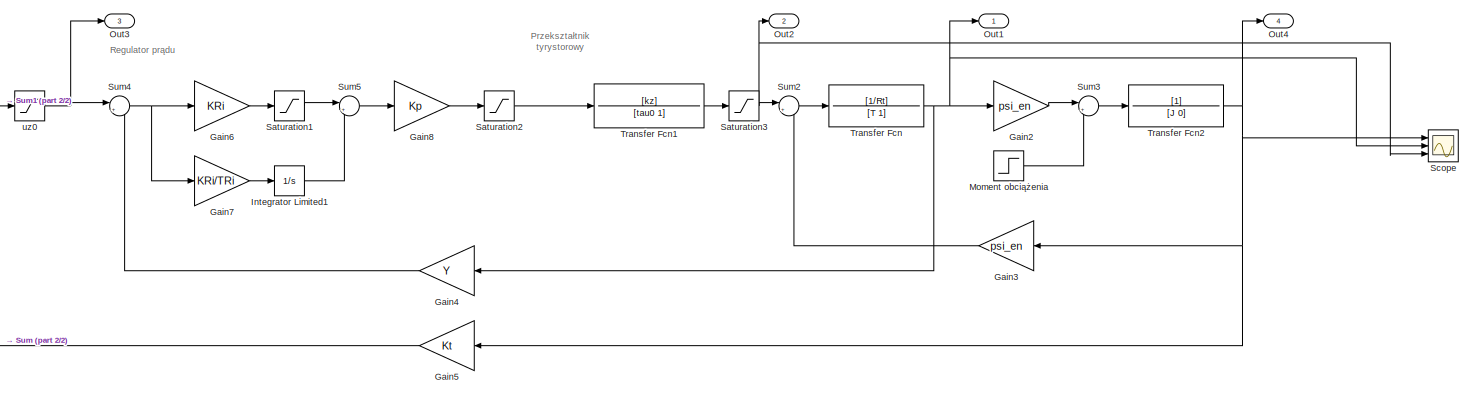
[diagram: root canvas - part 1/2, most of the canvas]
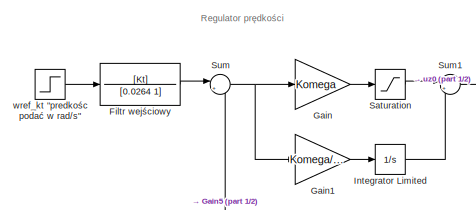
[diagram: root canvas - part 2/2, middle left region]
MODEL slx_f208530b48c3
KIND model
CONFIG AbsTol = auto
CONFIG EnableMultiTasking = off
CONFIG FixedStep = 0.001
CONFIG MaxStep = auto
CONFIG MinStep = auto
CONFIG RelTol = 1e-3
CONFIG SampleTimeConstraint = Unconstrained
CONFIG Solver = FixedStepAuto
CONFIG SolverName = FixedStepAuto
CONFIG StartTime = 0
CONFIG StopTime = 4
BLOCK [TransferFcn] Filtr wejściowy 
  Denominator = [0.0264 1]
  Numerator = [Kt]
BLOCK [Gain] Gain
  Gain = Komega
  OutDataTypeStr = Inherit: Inherit via internal rule
  ParamDataTypeStr = Inherit: Inherit via internal rule
  SaturateOnIntegerOverflow = off
BLOCK [Gain] Gain1
  Gain = Komega/Tr_pred
  OutDataTypeStr = Inherit: Inherit via internal rule
  ParamDataTypeStr = Inherit: Inherit via internal rule
  SaturateOnIntegerOverflow = off
BLOCK [Gain] Gain2
  Gain = psi_en
  OutDataTypeStr = Inherit: Inherit via internal rule
  ParamDataTypeStr = Inherit: Inherit via internal rule
  SaturateOnIntegerOverflow = off
BLOCK [Gain] Gain3
  Gain = psi_en
  OutDataTypeStr = Inherit: Inherit via internal rule
  ParamDataTypeStr = Inherit: Inherit via internal rule
  SaturateOnIntegerOverflow = off
BLOCK [Gain] Gain4
  Gain = Y
  OutDataTypeStr = Inherit: Inherit via internal rule
  ParamDataTypeStr = Inherit: Inherit via internal rule
  SaturateOnIntegerOverflow = off
BLOCK [Gain] Gain5
  Gain = Kt
  OutDataTypeStr = Inherit: Inherit via internal rule
  ParamDataTypeStr = Inherit: Inherit via internal rule
  SaturateOnIntegerOverflow = off
BLOCK [Gain] Gain6
  Gain = KRi
  OutDataTypeStr = Inherit: Inherit via internal rule
  ParamDataTypeStr = Inherit: Inherit via internal rule
  SaturateOnIntegerOverflow = off
BLOCK [Gain] Gain7
  Gain = KRi/TRi
  OutDataTypeStr = Inherit: Inherit via internal rule
  ParamDataTypeStr = Inherit: Inherit via internal rule
  SaturateOnIntegerOverflow = off
BLOCK [Gain] Gain8
  Gain = Kp
  OutDataTypeStr = Inherit: Inherit via internal rule
  ParamDataTypeStr = Inherit: Inherit via internal rule
  SaturateOnIntegerOverflow = off
BLOCK [Integrator] Integrator Limited
  LimitOutput = on
  LowerSaturationLimit = -10
  Ports = [1, 1]
  UpperSaturationLimit = 10
BLOCK [Integrator] Integrator Limited1
  LimitOutput = on
  LowerSaturationLimit = -10
  Ports = [1, 1]
  UpperSaturationLimit = 10
BLOCK [Step] Moment obciążenia
  After = 0
  SampleTime = 0
BLOCK [Outport] Out1
  IconDisplay = Port number
  SignalName = Prad_twornika
BLOCK [Outport] Out2
  IconDisplay = Port number
  Port = 2
  SignalName = Napiecie twornika
BLOCK [Outport] Out3
  IconDisplay = Port number
  Port = 3
  SignalName = Prad zadany
BLOCK [Outport] Out4
  IconDisplay = Port number
  Port = 4
  SignalName = Predkość
BLOCK [Saturate] Saturation
  InputPortMap = u0
  LowerLimit = -10
  Ports = [1, 1]
  UpperLimit = 10
BLOCK [Saturate] Saturation1
  InputPortMap = u0
  LowerLimit = -10
  Ports = [1, 1]
  UpperLimit = 10
BLOCK [Saturate] Saturation2
  InputPortMap = u0
  LowerLimit = -700
  Ports = [1, 1]
  UpperLimit = 700
BLOCK [Saturate] Saturation3
  InputPortMap = u0
  LowerLimit = -700
  Ports = [1, 1]
  UpperLimit = 700
BLOCK [Scope] Scope
  Floating = off
  NumInputPorts = 3
  Ports = [3]
  ScopeSpecificationString = Simulink.scopes.TimeScopeBlockCfg('CurrentConfiguration', extmgr.ConfigurationSet(extmgr.Configuration('Core','General UI',true),extmgr.Configuration('Core','Source UI',true),extmgr.Configuration('Sources','WiredSimulink',true),extmgr.Configuration('Visuals','Time Domain',true,'SerializedDisplays',{struct('MinYLimReal','-200','MaxYLimReal','300','YLabelReal','','MinYLimMag',' 0.00000','MaxYLimMag'...<+1605ch>
BLOCK [Sum] Sum
  IconShape = round
  InputSameDT = off
  Inputs = |+-
  OutDataTypeStr = Inherit: Inherit via internal rule
  Ports = [2, 1]
  SaturateOnIntegerOverflow = off
BLOCK [Sum] Sum1
  IconShape = round
  InputSameDT = off
  Inputs = |++
  OutDataTypeStr = Inherit: Inherit via internal rule
  Ports = [2, 1]
  SaturateOnIntegerOverflow = off
BLOCK [Sum] Sum2
  IconShape = round
  InputSameDT = off
  Inputs = |+-
  OutDataTypeStr = Inherit: Inherit via internal rule
  Ports = [2, 1]
  SaturateOnIntegerOverflow = off
BLOCK [Sum] Sum3
  IconShape = round
  InputSameDT = off
  Inputs = |+-
  OutDataTypeStr = Inherit: Inherit via internal rule
  Ports = [2, 1]
  SaturateOnIntegerOverflow = off
BLOCK [Sum] Sum4
  IconShape = round
  InputSameDT = off
  Inputs = |+-
  OutDataTypeStr = Inherit: Inherit via internal rule
  Ports = [2, 1]
  SaturateOnIntegerOverflow = off
BLOCK [Sum] Sum5
  IconShape = round
  InputSameDT = off
  Inputs = |++
  OutDataTypeStr = Inherit: Inherit via internal rule
  Ports = [2, 1]
  SaturateOnIntegerOverflow = off
BLOCK [TransferFcn] Transfer Fcn
  Denominator = [T 1]
  Numerator = [1/Rt]
BLOCK [TransferFcn] Transfer Fcn1
  Denominator = [tau0 1]
  Numerator = [kz]
BLOCK [TransferFcn] Transfer Fcn2
  Denominator = [J 0]
BLOCK [Saturate] uz0
  InputPortMap = u0
  LowerLimit = - u_z0
  Ports = [1, 1]
  UpperLimit = u_z0
BLOCK [Step] wref_kt "predkośc podać w rad//s"
  After = 100
  SampleTime = 0
  Time = 0
ANNOTATION (root): Przekształtnik tyrystorowy
ANNOTATION (root): Regulator prądu
ANNOTATION (root): Regulator prędkości
LINE Filtr wejściowy :1 -> Sum:1
LINE Gain1:1 -> Integrator Limited:1
LINE Gain2:1 -> Sum3:1
LINE Gain3:1 -> Sum2:2
LINE Gain4:1 -> Sum4:2
LINE Gain5:1 -> Sum:2
LINE Gain6:1 -> Saturation1:1
LINE Gain7:1 -> Integrator Limited1:1
LINE Gain8:1 -> Saturation2:1
LINE Gain:1 -> Saturation:1
LINE Integrator Limited1:1 -> Sum5:2
LINE Integrator Limited:1 -> Sum1:2
LINE Moment obciążenia:1 -> Sum3:2
LINE Saturation1:1 -> Sum5:1
LINE Saturation2:1 -> Transfer Fcn1:1
NET Saturation3:1 -> Out2:1, Scope:3, Sum2:1
LINE Saturation:1 -> Sum1:1
LINE Sum1:1 -> uz0:1
LINE Sum2:1 -> Transfer Fcn:1
LINE Sum3:1 -> Transfer Fcn2:1
NET Sum4:1 -> Gain6:1, Gain7:1
LINE Sum5:1 -> Gain8:1
NET Sum:1 -> Gain1:1, Gain:1
LINE Transfer Fcn1:1 -> Saturation3:1
NET Transfer Fcn2:1 -> Gain3:1, Gain5:1, Out4:1, Scope:1
NET Transfer Fcn:1 -> Gain2:1, Gain4:1, Out1:1, Scope:2
NET uz0:1 -> Out3:1, Sum4:1
LINE wref_kt "predkośc podać w rad//s":1 -> Filtr wejściowy :1
note: NET lines group one-source signal fan-out (src -> all destinations, sorted); 1:1 wires keep LINE
